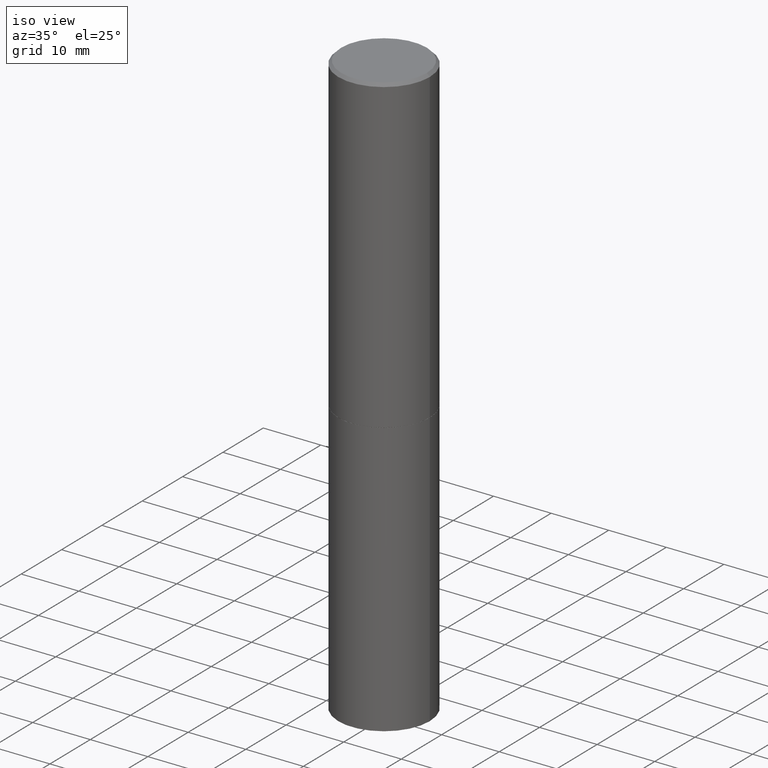
[diagram: clean part render]
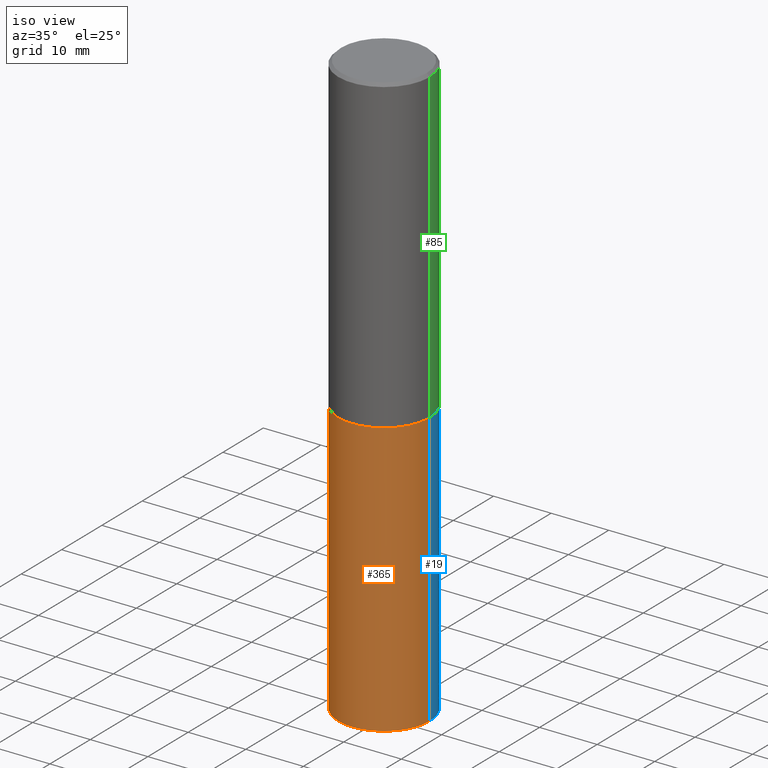
[diagram: same view with three faces highlighted in distinct colors, each labeled with its STEP entity id]
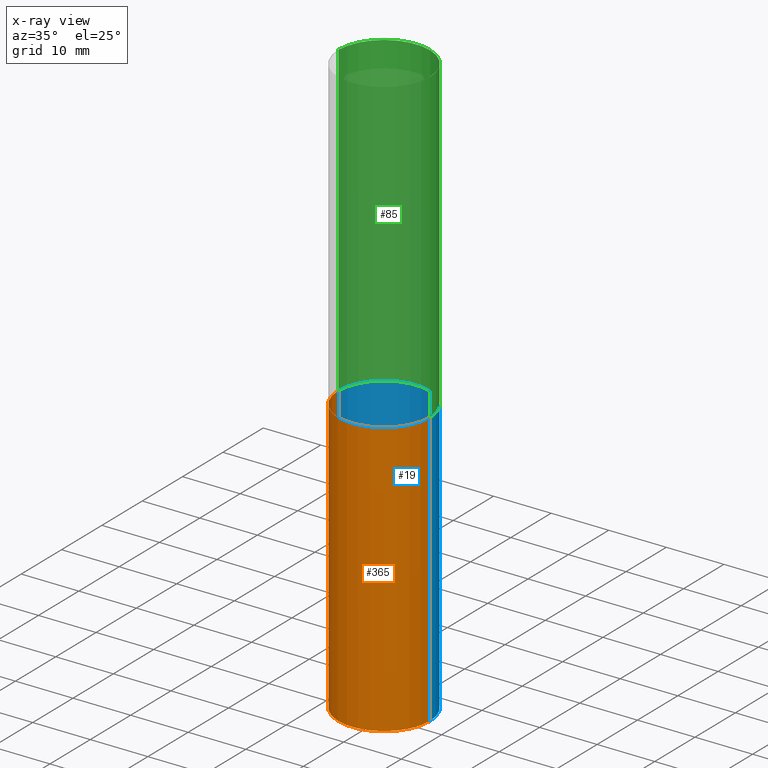
[diagram: x-ray of the same camera — body ghosted, the three highlighted faces saturated]
A machine part, iso view with three faces highlighted in distinct colors.
The next image is the same camera in x-ray (body ghosted, the three faces saturated) — at least one of them is partly hidden behind the body in this view.
Their STEP definitions:

[orange] entity #365 — the highlighted cylindrical surface (partial cylindrical patch) has radius 7.9375 mm, axis along (-0, 0, 1).
#3 = CARTESIAN_POINT ( 'NONE',  ( -0.3125000000000000000, 2.220446049250313081E-15, -1.537167215704658232E-29 ) ) ;
#14 = VERTEX_POINT ( 'NONE', #268 ) ;
#17 = DIRECTION ( 'NONE',  ( -2.445468806185136597E-29, 3.491481338843145583E-15, 1.000000000000000000 ) ) ;
#23 = LINE ( 'NONE', #131, #129 ) ;
#24 = DIRECTION ( 'NONE',  ( 1.000000000000000000, -6.982962677686266711E-15, 4.876176775795936353E-29 ) ) ;
#29 = DIRECTION ( 'NONE',  ( -2.445468806185136597E-29, 3.491481338843145583E-15, 1.000000000000000000 ) ) ;
#41 = DIRECTION ( 'NONE',  ( -2.445468806185136597E-29, 3.491481338843145583E-15, 1.000000000000000000 ) ) ;
#43 = CARTESIAN_POINT ( 'NONE',  ( -0.3125000000000000000, -8.472215550956819896E-15, -4.000000000000000000 ) ) ;
#44 = DIRECTION ( 'NONE',  ( 1.000000000000000000, -6.982962677686265133E-15, 0.000000000000000000 ) ) ;
#48 = FACE_OUTER_BOUND ( 'NONE', #204, .T. ) ;
#67 = VERTEX_POINT ( 'NONE', #43 ) ;
#68 = VERTEX_POINT ( 'NONE', #127 ) ;
#104 = EDGE_CURVE ( 'NONE', #293, #68, #291, .T. ) ;
#120 = ORIENTED_EDGE ( 'NONE', *, *, #171, .T. ) ;
#127 = CARTESIAN_POINT ( 'NONE',  ( 0.3125000000000000000, -9.601573681818640393E-15, -2.124999999999999556 ) ) ;
#128 = AXIS2_PLACEMENT_3D ( 'NONE', #183, #41, #44 ) ;
#129 = VECTOR ( 'NONE', #209, 39.37007874015748143 ) ;
#131 = CARTESIAN_POINT ( 'NONE',  ( 0.3125000000000000000, -2.182175836776958347E-15, 1.523805242436230075E-29 ) ) ;
#134 = AXIS2_PLACEMENT_3D ( 'NONE', #149, #17, #329 ) ;
#135 = CYLINDRICAL_SURFACE ( 'NONE', #142, 0.3125000000000000000 ) ;
#138 = VECTOR ( 'NONE', #308, 39.37007874015748143 ) ;
#142 = AXIS2_PLACEMENT_3D ( 'NONE', #156, #29, #24 ) ;
#149 = CARTESIAN_POINT ( 'NONE',  ( 9.781875224740546387E-29, -1.396592535537258233E-14, -4.000000000000000000 ) ) ;
#156 = CARTESIAN_POINT ( 'NONE',  ( 0.000000000000000000, 0.000000000000000000, 0.000000000000000000 ) ) ;
#163 = LINE ( 'NONE', #3, #138 ) ;
#171 = EDGE_CURVE ( 'NONE', #67, #14, #223, .T. ) ;
#183 = CARTESIAN_POINT ( 'NONE',  ( 5.196621213143414147E-29, -7.419397845041682046E-15, -2.124999999999999556 ) ) ;
#186 = EDGE_CURVE ( 'NONE', #14, #68, #23, .T. ) ;
#202 = ORIENTED_EDGE ( 'NONE', *, *, #104, .F. ) ;
#204 = EDGE_LOOP ( 'NONE', ( #231, #120, #349, #202 ) ) ;
#209 = DIRECTION ( 'NONE',  ( -2.445468806185136877E-29, 3.491481338843145188E-15, 1.000000000000000000 ) ) ;
#223 = CIRCLE ( 'NONE', #134, 0.3125000000000000000 ) ;
#231 = ORIENTED_EDGE ( 'NONE', *, *, #251, .F. ) ;
#251 = EDGE_CURVE ( 'NONE', #67, #293, #163, .T. ) ;
#268 = CARTESIAN_POINT ( 'NONE',  ( 0.3125000000000000000, -1.614810119214954068E-14, -4.000000000000000000 ) ) ;
#280 = CARTESIAN_POINT ( 'NONE',  ( -0.3125000000000000000, -8.472215550956819896E-15, -2.124999999999999556 ) ) ;
#291 = CIRCLE ( 'NONE', #128, 0.3125000000000000000 ) ;
#293 = VERTEX_POINT ( 'NONE', #280 ) ;
#308 = DIRECTION ( 'NONE',  ( -2.445468806185136877E-29, 3.491481338843145188E-15, 1.000000000000000000 ) ) ;
#329 = DIRECTION ( 'NONE',  ( 1.000000000000000000, -6.982962677686269077E-15, 0.000000000000000000 ) ) ;
#349 = ORIENTED_EDGE ( 'NONE', *, *, #186, .T. ) ;
#365 = ADVANCED_FACE ( 'NONE', ( #48 ), #135, .T. ) ;

[blue] entity #19 — the highlighted cylindrical surface (partial cylindrical patch) has radius 7.9375 mm, axis along (-0, 0, 1).
#3 = CARTESIAN_POINT ( 'NONE',  ( -0.3125000000000000000, 2.220446049250313081E-15, -1.537167215704658232E-29 ) ) ;
#14 = VERTEX_POINT ( 'NONE', #268 ) ;
#19 = ADVANCED_FACE ( 'NONE', ( #238 ), #105, .T. ) ;
#23 = LINE ( 'NONE', #131, #129 ) ;
#43 = CARTESIAN_POINT ( 'NONE',  ( -0.3125000000000000000, -8.472215550956819896E-15, -4.000000000000000000 ) ) ;
#46 = AXIS2_PLACEMENT_3D ( 'NONE', #47, #213, #351 ) ;
#47 = CARTESIAN_POINT ( 'NONE',  ( 9.781875224740546387E-29, -1.396592535537258233E-14, -4.000000000000000000 ) ) ;
#54 = DIRECTION ( 'NONE',  ( 1.000000000000000000, -6.982962677686265133E-15, 0.000000000000000000 ) ) ;
#67 = VERTEX_POINT ( 'NONE', #43 ) ;
#68 = VERTEX_POINT ( 'NONE', #127 ) ;
#105 = CYLINDRICAL_SURFACE ( 'NONE', #211, 0.3125000000000000000 ) ;
#127 = CARTESIAN_POINT ( 'NONE',  ( 0.3125000000000000000, -9.601573681818640393E-15, -2.124999999999999556 ) ) ;
#129 = VECTOR ( 'NONE', #209, 39.37007874015748143 ) ;
#131 = CARTESIAN_POINT ( 'NONE',  ( 0.3125000000000000000, -2.182175836776958347E-15, 1.523805242436230075E-29 ) ) ;
#137 = CIRCLE ( 'NONE', #46, 0.3125000000000000000 ) ;
#138 = VECTOR ( 'NONE', #308, 39.37007874015748143 ) ;
#148 = EDGE_CURVE ( 'NONE', #14, #67, #137, .T. ) ;
#163 = LINE ( 'NONE', #3, #138 ) ;
#186 = EDGE_CURVE ( 'NONE', #14, #68, #23, .T. ) ;
#209 = DIRECTION ( 'NONE',  ( -2.445468806185136877E-29, 3.491481338843145188E-15, 1.000000000000000000 ) ) ;
#211 = AXIS2_PLACEMENT_3D ( 'NONE', #330, #332, #267 ) ;
#213 = DIRECTION ( 'NONE',  ( -2.445468806185136597E-29, 3.491481338843145583E-15, 1.000000000000000000 ) ) ;
#218 = CIRCLE ( 'NONE', #328, 0.3125000000000000000 ) ;
#230 = ORIENTED_EDGE ( 'NONE', *, *, #148, .T. ) ;
#238 = FACE_OUTER_BOUND ( 'NONE', #350, .T. ) ;
#251 = EDGE_CURVE ( 'NONE', #67, #293, #163, .T. ) ;
#256 = ORIENTED_EDGE ( 'NONE', *, *, #251, .T. ) ;
#267 = DIRECTION ( 'NONE',  ( 1.000000000000000000, -6.982962677686266711E-15, 4.876176775795936353E-29 ) ) ;
#268 = CARTESIAN_POINT ( 'NONE',  ( 0.3125000000000000000, -1.614810119214954068E-14, -4.000000000000000000 ) ) ;
#280 = CARTESIAN_POINT ( 'NONE',  ( -0.3125000000000000000, -8.472215550956819896E-15, -2.124999999999999556 ) ) ;
#286 = CARTESIAN_POINT ( 'NONE',  ( 5.196621213143414147E-29, -7.419397845041682046E-15, -2.124999999999999556 ) ) ;
#293 = VERTEX_POINT ( 'NONE', #280 ) ;
#305 = EDGE_CURVE ( 'NONE', #68, #293, #218, .T. ) ;
#308 = DIRECTION ( 'NONE',  ( -2.445468806185136877E-29, 3.491481338843145188E-15, 1.000000000000000000 ) ) ;
#311 = DIRECTION ( 'NONE',  ( -2.445468806185136597E-29, 3.491481338843145583E-15, 1.000000000000000000 ) ) ;
#324 = ORIENTED_EDGE ( 'NONE', *, *, #305, .F. ) ;
#328 = AXIS2_PLACEMENT_3D ( 'NONE', #286, #311, #54 ) ;
#330 = CARTESIAN_POINT ( 'NONE',  ( 0.000000000000000000, 0.000000000000000000, 0.000000000000000000 ) ) ;
#332 = DIRECTION ( 'NONE',  ( -2.445468806185136597E-29, 3.491481338843145583E-15, 1.000000000000000000 ) ) ;
#344 = ORIENTED_EDGE ( 'NONE', *, *, #186, .F. ) ;
#350 = EDGE_LOOP ( 'NONE', ( #230, #256, #324, #344 ) ) ;
#351 = DIRECTION ( 'NONE',  ( 1.000000000000000000, -6.982962677686269077E-15, 0.000000000000000000 ) ) ;

[green] entity #85 — the highlighted cylindrical surface (partial cylindrical patch) has radius 7.9375 mm, axis along (-0, 0, 1).
#4 = EDGE_CURVE ( 'NONE', #140, #62, #200, .T. ) ;
#5 = EDGE_CURVE ( 'NONE', #263, #297, #322, .T. ) ;
#6 = ORIENTED_EDGE ( 'NONE', *, *, #281, .T. ) ;
#10 = AXIS2_PLACEMENT_3D ( 'NONE', #300, #301, #190 ) ;
#32 = DIRECTION ( 'NONE',  ( -2.445468806185136877E-29, 3.491481338843145188E-15, 1.000000000000000000 ) ) ;
#37 = ORIENTED_EDGE ( 'NONE', *, *, #237, .F. ) ;
#58 = LINE ( 'NONE', #191, #115 ) ;
#62 = VERTEX_POINT ( 'NONE', #353 ) ;
#76 = AXIS2_PLACEMENT_3D ( 'NONE', #272, #360, #103 ) ;
#85 = ADVANCED_FACE ( 'NONE', ( #187 ), #151, .T. ) ;
#103 = DIRECTION ( 'NONE',  ( 1.000000000000000000, -6.982962677686266711E-15, 4.876176775795935232E-29 ) ) ;
#115 = VECTOR ( 'NONE', #32, 39.37007874015748143 ) ;
#125 = DIRECTION ( 'NONE',  ( -2.445468806185136597E-29, 3.491481338843145583E-15, 1.000000000000000000 ) ) ;
#136 = CARTESIAN_POINT ( 'NONE',  ( -0.3124999999999998890, 2.220446049250312292E-15, -1.537167215704657391E-29 ) ) ;
#140 = VERTEX_POINT ( 'NONE', #188 ) ;
#151 = CYLINDRICAL_SURFACE ( 'NONE', #76, 0.3124999999999998890 ) ;
#187 = FACE_OUTER_BOUND ( 'NONE', #262, .T. ) ;
#188 = CARTESIAN_POINT ( 'NONE',  ( 0.3125000000000000000, -9.598082200479797386E-15, -2.123999999999999666 ) ) ;
#190 = DIRECTION ( 'NONE',  ( 1.000000000000000000, -6.982962677686265133E-15, 0.000000000000000000 ) ) ;
#191 = CARTESIAN_POINT ( 'NONE',  ( 0.3124999999999998890, -2.182175836776957558E-15, 1.523805242436229235E-29 ) ) ;
#195 = CARTESIAN_POINT ( 'NONE',  ( 0.3124999999999998335, -2.213735251080465334E-15, -0.02000000000000007674 ) ) ;
#200 = CIRCLE ( 'NONE', #10, 0.3125000000000000000 ) ;
#203 = ORIENTED_EDGE ( 'NONE', *, *, #4, .T. ) ;
#212 = DIRECTION ( 'NONE',  ( 1.000000000000000000, -6.982962677686265133E-15, 0.000000000000000000 ) ) ;
#219 = LINE ( 'NONE', #136, #247 ) ;
#237 = EDGE_CURVE ( 'NONE', #140, #263, #58, .T. ) ;
#245 = AXIS2_PLACEMENT_3D ( 'NONE', #299, #125, #212 ) ;
#247 = VECTOR ( 'NONE', #277, 39.37007874015748143 ) ;
#262 = EDGE_LOOP ( 'NONE', ( #203, #6, #288, #37 ) ) ;
#263 = VERTEX_POINT ( 'NONE', #195 ) ;
#272 = CARTESIAN_POINT ( 'NONE',  ( 0.000000000000000000, 0.000000000000000000, 0.000000000000000000 ) ) ;
#277 = DIRECTION ( 'NONE',  ( -2.445468806185136877E-29, 3.491481338843145188E-15, 1.000000000000000000 ) ) ;
#281 = EDGE_CURVE ( 'NONE', #62, #297, #219, .T. ) ;
#288 = ORIENTED_EDGE ( 'NONE', *, *, #5, .F. ) ;
#297 = VERTEX_POINT ( 'NONE', #352 ) ;
#299 = CARTESIAN_POINT ( 'NONE',  ( 4.890937612370292426E-31, -6.982962677686317493E-17, -0.02000000000000007674 ) ) ;
#300 = CARTESIAN_POINT ( 'NONE',  ( 5.194175744337229665E-29, -7.415906363702840616E-15, -2.123999999999999666 ) ) ;
#301 = DIRECTION ( 'NONE',  ( -2.445468806185136597E-29, 3.491481338843145583E-15, 1.000000000000000000 ) ) ;
#322 = CIRCLE ( 'NONE', #245, 0.3124999999999998335 ) ;
#352 = CARTESIAN_POINT ( 'NONE',  ( -0.3124999999999998335, 2.112346210000093866E-15, -0.02000000000000007674 ) ) ;
#353 = CARTESIAN_POINT ( 'NONE',  ( -0.3125000000000000000, -1.522421945989535918E-15, -2.123999999999999666 ) ) ;
#360 = DIRECTION ( 'NONE',  ( -2.445468806185136597E-29, 3.491481338843145583E-15, 1.000000000000000000 ) ) ;